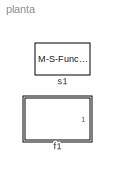
MODEL planta
KIND model
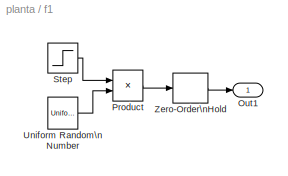
BLOCK [SubSystem] f1
  FunctionWithSeparateData = off
  MaskCallbackString = ||
  MaskDisplay = disp('Ent. Variable')
  MaskEnableString = on,on,on
  MaskHideContents = off
  MaskIconFrame = on
  MaskIconOpaque = on
  MaskIconRotate = none
  MaskIconUnits = autoscale
  MaskPromptString = Limite Superior|Limite Inferior|Periodo de cambio
  MaskStyleString = edit,edit,edit
  MaskTabNameString = ,,
  MaskToolTipString = on,on,on
  MaskTunableValueString = on,on,on
  MaskValueString = 1|0|2
  MaskVarAliasString = ,,
  MaskVariables = S=@1;L=@2;T=@3;
  MaskVisibilityString = on,on,on
  MinAlgLoopOccurrences = off
  Ports = [0, 1]
  RTWSystemCode = Auto
BLOCK [Outport] f1/Out1
  IconDisplay = Port number
BLOCK [Product] f1/Product
  InputSameDT = off
  OutDataTypeMode = Inherit via internal rule
  Ports = [2, 1]
  SaturateOnIntegerOverflow = off
BLOCK [Step] f1/Step
  SampleTime = 0
  Time = 0
BLOCK [UniformRandomNumber] f1/Uniform Random\nNumber
  Maximum = S
  Minimum = L
  SampleTime = 0
BLOCK [ZeroOrderHold] f1/Zero-Order\nHold
  SampleTime = T
BLOCK [M-S-Function] s1
  FunctionName = whoknows
  MaskCallbackString = ||||
  MaskDisplay = disp('Sistema')
  MaskEnableString = on,on,on,on,on
  MaskIconFrame = on
  MaskIconOpaque = on
  MaskIconRotate = none
  MaskIconUnits = autoscale
  MaskPromptString = Laboratorio|Primer digito del Puesto|Segundo digito del Puesto|Tipo de Planta|Ruido
  MaskStyleString = edit,edit,edit,edit,edit
  MaskTabNameString = ,,,,
  MaskToolTipString = on,on,on,on,on
  MaskTunableValueString = on,on,on,on,on
  MaskValueString = 7|0|7|2|0
  MaskVarAliasString = ,,,,
  MaskVariables = L=@1;P1=@2;P2=@3;T=@4;R=@5;
  MaskVisibilityString = on,on,on,on,on
  Parameters = L, P1, P2, T, R
  Ports = [1, 1]
LINE f1/Product:1 -> f1/Zero-Order\nHold:1
LINE f1/Step:1 -> f1/Product:1
LINE f1/Uniform Random\nNumber:1 -> f1/Product:2
LINE f1/Zero-Order\nHold:1 -> f1/Out1:1
